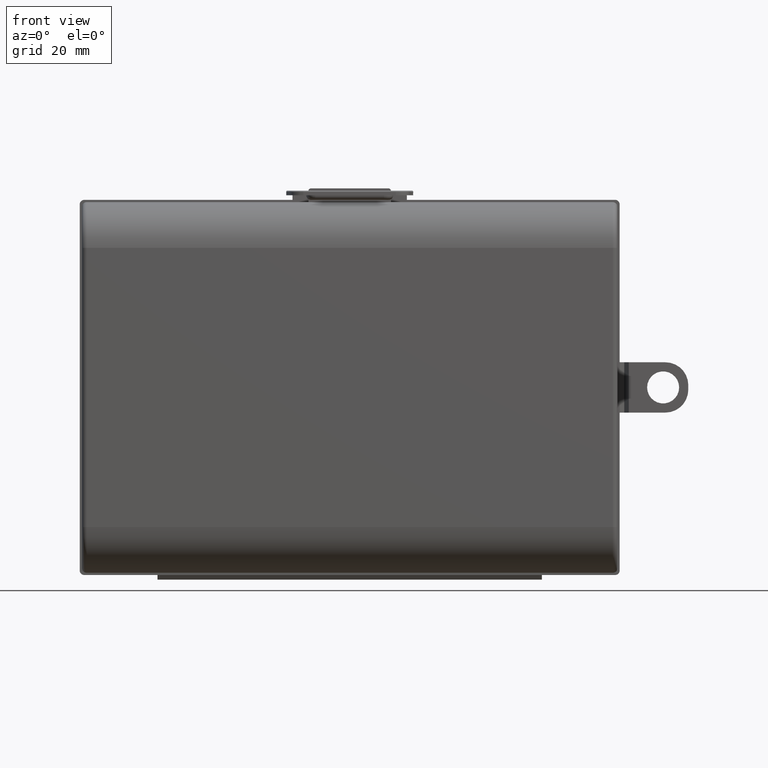
[diagram: clean part render]
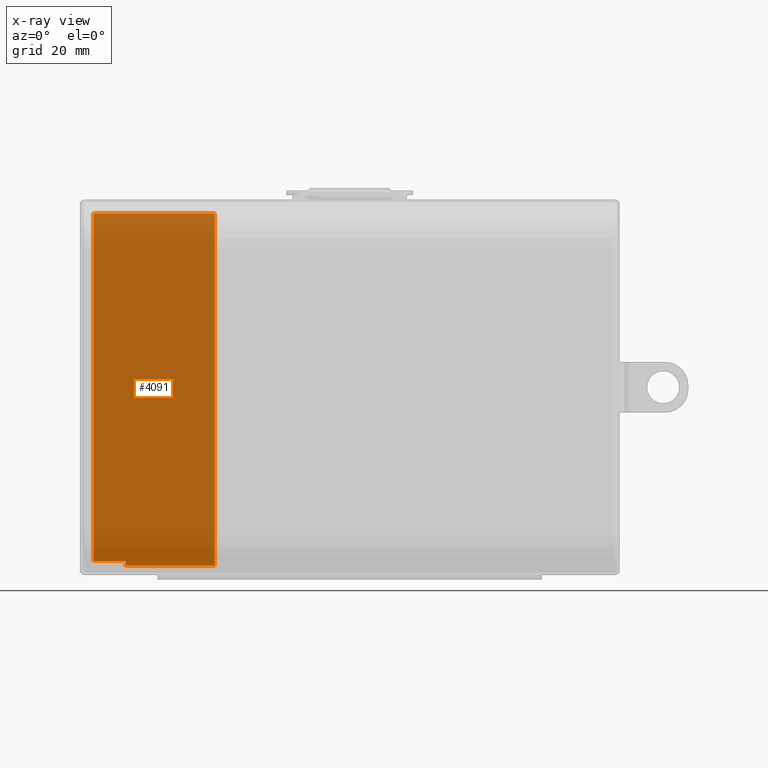
[diagram: x-ray — body ghosted, one internal face saturated and labeled with its STEP entity id]
A machine part, front view, then the same camera in x-ray: the body is ghosted and one INTERNAL B-rep face — a face not visible from any outside direction — is saturated and labeled: STEP entity #4091.
In plain terms, the highlighted planar face has unit normal (0, 1, 0).
Its self-contained STEP definition (entity closure, byte-faithful):
#59 = VERTEX_POINT ( 'NONE', #604 ) ;
#211 = CARTESIAN_POINT ( 'NONE',  ( -29.50000000000000000, 4.999999999999999112, 37.99999999999999289 ) ) ;
#248 = EDGE_CURVE ( 'NONE', #271, #7786, #2636, .T. ) ;
#271 = VERTEX_POINT ( 'NONE', #4729 ) ;
#604 = CARTESIAN_POINT ( 'NONE',  ( -56.00000000000001421, 4.999999999999999112, 37.99999999999999289 ) ) ;
#724 = CARTESIAN_POINT ( 'NONE',  ( -29.50000000000000000, 4.999999999999999112, -38.99999999999998579 ) ) ;
#731 = VERTEX_POINT ( 'NONE', #211 ) ;
#763 = ORIENTED_EDGE ( 'NONE', *, *, #248, .T. ) ;
#772 = LINE ( 'NONE', #1516, #6610 ) ;
#905 = DIRECTION ( 'NONE',  ( -1.000000000000000000, 0.000000000000000000, 0.000000000000000000 ) ) ;
#1390 = DIRECTION ( 'NONE',  ( 1.000000000000000000, -0.000000000000000000, 0.000000000000000000 ) ) ;
#1462 = CARTESIAN_POINT ( 'NONE',  ( -59.00000000000001421, 4.999999999999999112, 37.99999999999999289 ) ) ;
#1472 = DIRECTION ( 'NONE',  ( 0.000000000000000000, 0.000000000000000000, -1.000000000000000000 ) ) ;
#1504 = DIRECTION ( 'NONE',  ( 1.000000000000000000, -0.000000000000000000, 0.000000000000000000 ) ) ;
#1516 = CARTESIAN_POINT ( 'NONE',  ( -29.50000000000000000, 4.999999999999999112, 38.99999999999997158 ) ) ;
#1732 = VECTOR ( 'NONE', #5543, 1000.000000000000000 ) ;
#1762 = VECTOR ( 'NONE', #2973, 1000.000000000000000 ) ;
#1822 = CARTESIAN_POINT ( 'NONE',  ( -56.00000000000002842, 4.999999999999999112, -41.00000000000000711 ) ) ;
#2067 = FACE_OUTER_BOUND ( 'NONE', #6196, .T. ) ;
#2187 = DIRECTION ( 'NONE',  ( 0.000000000000000000, 1.000000000000000000, 0.000000000000000000 ) ) ;
#2302 = EDGE_CURVE ( 'NONE', #5752, #2781, #4675, .T. ) ;
#2405 = CARTESIAN_POINT ( 'NONE',  ( -49.00000000000000000, 5.000000000000004441, -37.99999999999998579 ) ) ;
#2427 = VECTOR ( 'NONE', #1390, 1000.000000000000000 ) ;
#2448 = LINE ( 'NONE', #1822, #1762 ) ;
#2523 = EDGE_CURVE ( 'NONE', #2781, #59, #2448, .T. ) ;
#2636 = LINE ( 'NONE', #5151, #2427 ) ;
#2781 = VERTEX_POINT ( 'NONE', #4117 ) ;
#2973 = DIRECTION ( 'NONE',  ( 1.692413147294446463E-16, -0.000000000000000000, 1.000000000000000000 ) ) ;
#3012 = LINE ( 'NONE', #2405, #1732 ) ;
#3685 = VECTOR ( 'NONE', #1504, 1000.000000000000000 ) ;
#3823 = ORIENTED_EDGE ( 'NONE', *, *, #2302, .F. ) ;
#3957 = DIRECTION ( 'NONE',  ( 0.000000000000000000, -0.000000000000000000, 1.000000000000000000 ) ) ;
#4091 = ADVANCED_FACE ( 'NONE', ( #2067 ), #5163, .F. ) ;
#4117 = CARTESIAN_POINT ( 'NONE',  ( -56.00000000000002842, 4.999999999999999112, -38.00000000000000711 ) ) ;
#4475 = ORIENTED_EDGE ( 'NONE', *, *, #5639, .F. ) ;
#4675 = LINE ( 'NONE', #7156, #7436 ) ;
#4729 = CARTESIAN_POINT ( 'NONE',  ( -49.00000000000000000, 5.000000000000004441, -38.99999999999998579 ) ) ;
#4950 = CARTESIAN_POINT ( 'NONE',  ( -49.00000000000000000, 5.000000000000004441, -37.99999999999998579 ) ) ;
#5084 = EDGE_CURVE ( 'NONE', #5752, #271, #3012, .T. ) ;
#5151 = CARTESIAN_POINT ( 'NONE',  ( -49.00000000000000000, 5.000000000000004441, -38.99999999999998579 ) ) ;
#5163 = PLANE ( 'NONE',  #5915 ) ;
#5543 = DIRECTION ( 'NONE',  ( 0.000000000000000000, 0.000000000000000000, -1.000000000000000000 ) ) ;
#5639 = EDGE_CURVE ( 'NONE', #731, #7786, #772, .T. ) ;
#5752 = VERTEX_POINT ( 'NONE', #4950 ) ;
#5915 = AXIS2_PLACEMENT_3D ( 'NONE', #7770, #2187, #3957 ) ;
#6196 = EDGE_LOOP ( 'NONE', ( #4475, #6680, #7382, #3823, #7372, #763 ) ) ;
#6610 = VECTOR ( 'NONE', #1472, 1000.000000000000000 ) ;
#6680 = ORIENTED_EDGE ( 'NONE', *, *, #7869, .F. ) ;
#7129 = LINE ( 'NONE', #1462, #3685 ) ;
#7156 = CARTESIAN_POINT ( 'NONE',  ( -59.00000000000002842, 4.999999999999999112, -38.00000000000000711 ) ) ;
#7372 = ORIENTED_EDGE ( 'NONE', *, *, #5084, .T. ) ;
#7382 = ORIENTED_EDGE ( 'NONE', *, *, #2523, .F. ) ;
#7436 = VECTOR ( 'NONE', #905, 1000.000000000000000 ) ;
#7770 = CARTESIAN_POINT ( 'NONE',  ( 0.000000000000000000, 4.999999999999999112, 0.000000000000000000 ) ) ;
#7786 = VERTEX_POINT ( 'NONE', #724 ) ;
#7869 = EDGE_CURVE ( 'NONE', #59, #731, #7129, .T. ) ;